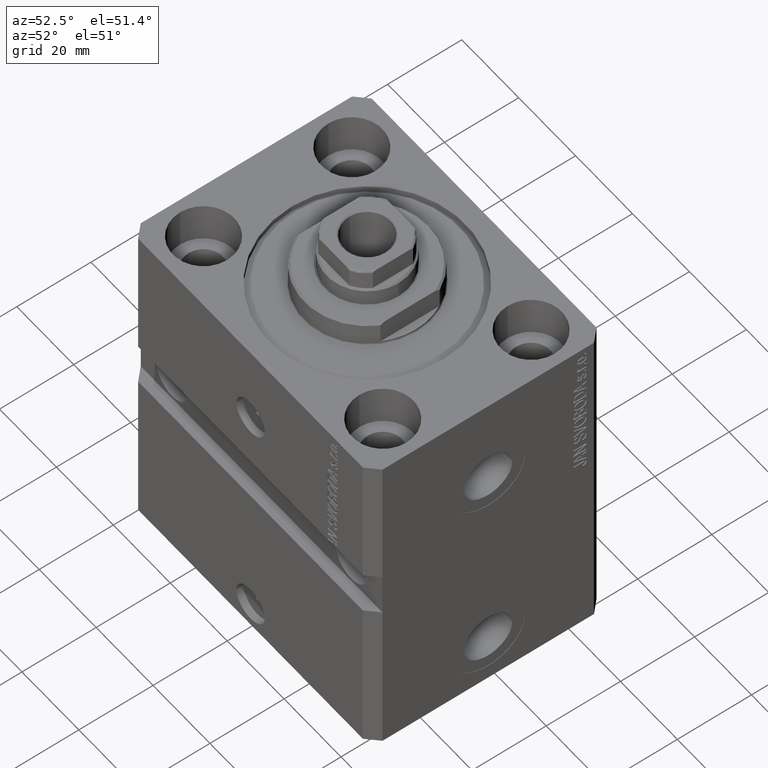
[diagram: clean part render]
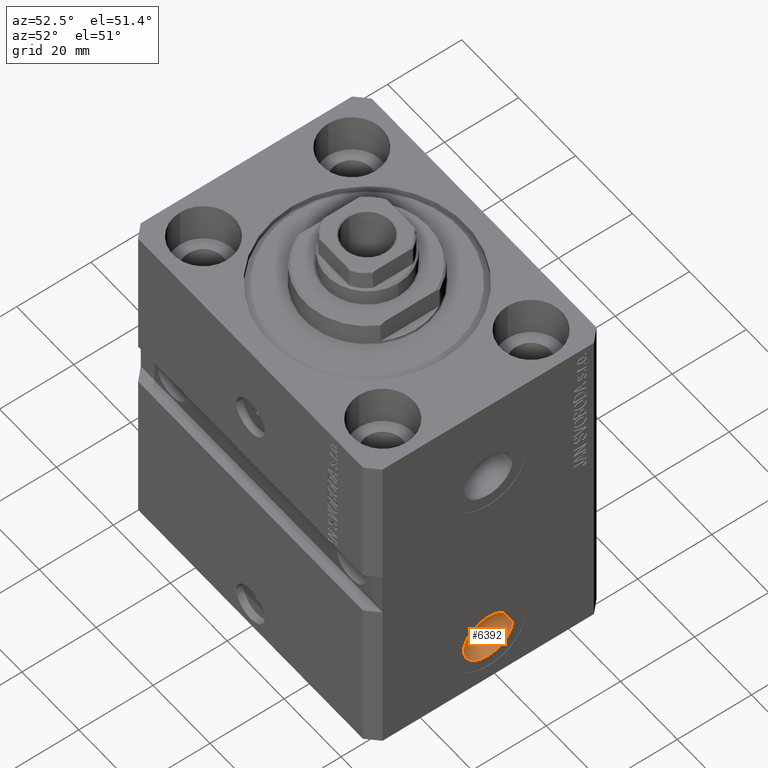
[diagram: same view with one face highlighted and labeled with its STEP entity id]
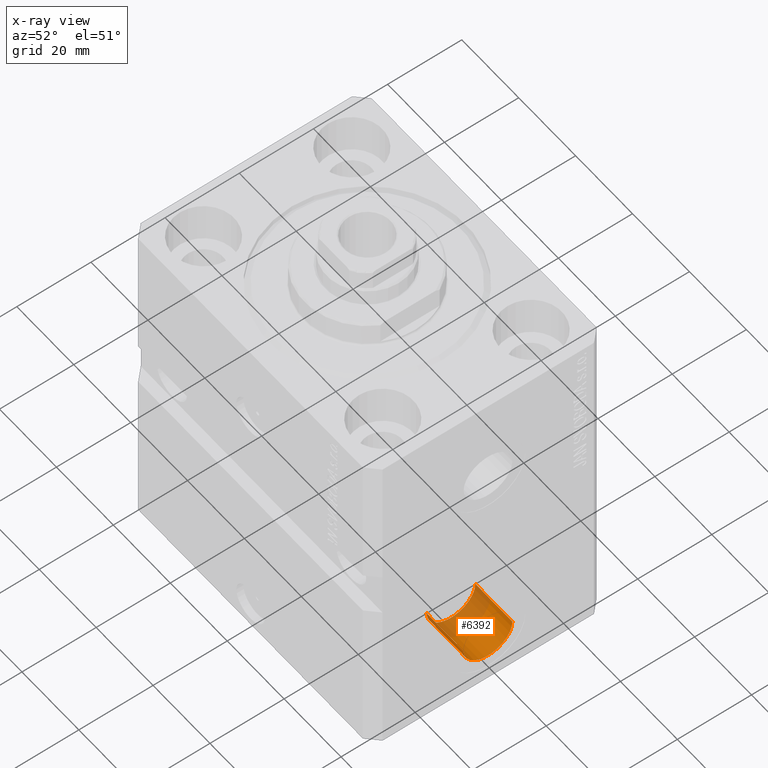
[diagram: x-ray of the same camera — body ghosted, the highlighted face saturated]
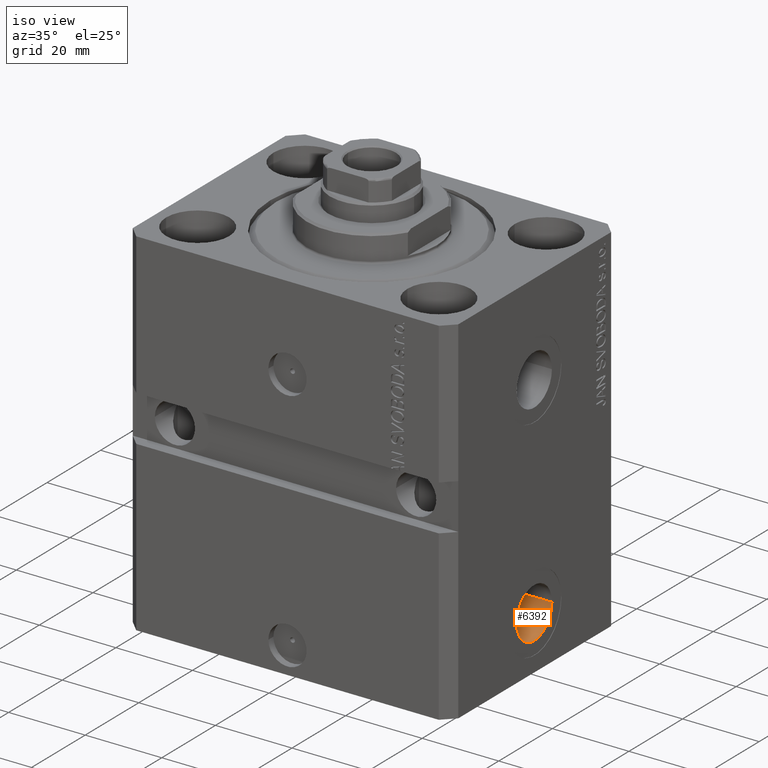
[diagram: same view with one face highlighted and labeled with its STEP entity id]
A machine part, auxiliary view. The second image highlights one B-rep face of the part: STEP entity #6392.
The next image is the same camera in x-ray: the body ghosted, the highlighted face saturated — about 39% of this face is hidden behind the body in this view.
A second angle (iso view) of the same face is appended — the face is thin or edge-on in the first view.
In plain terms, the highlighted cylindrical surface (edge-blend (fillet) strip) has radius 6.58 mm, axis along (1, -0, 0).
Its self-contained STEP definition (entity closure, byte-faithful):
#54 = LINE ( 'NONE', #14893, #9824 ) ;
#102 = EDGE_CURVE ( 'NONE', #21174, #42976, #19855, .T. ) ;
#2217 = AXIS2_PLACEMENT_3D ( 'NONE', #40500, #36154, #25902 ) ;
#3523 = FACE_OUTER_BOUND ( 'NONE', #4027, .T. ) ;
#3611 = CARTESIAN_POINT ( 'NONE',  ( 29.40000000000035385, 6.579999999999785132, -79.00000000000000000 ) ) ;
#3721 = ORIENTED_EDGE ( 'NONE', *, *, #25877, .F. ) ;
#3913 = DIRECTION ( 'NONE',  ( 1.370906090437600963E-14, 1.000000000000000000, 0.000000000000000000 ) ) ;
#4027 = EDGE_LOOP ( 'NONE', ( #3721, #26011, #20166, #5959 ) ) ;
#4643 = CARTESIAN_POINT ( 'NONE',  ( 42.40000000000026148, -3.763483751660370480E-13, -79.00000000000000000 ) ) ;
#5959 = ORIENTED_EDGE ( 'NONE', *, *, #26707, .F. ) ;
#6392 = ADVANCED_FACE ( 'NONE', ( #3523 ), #6709, .F. ) ;
#6709 = CYLINDRICAL_SURFACE ( 'NONE', #2217, 6.579999999999987637 ) ;
#6804 = CARTESIAN_POINT ( 'NONE',  ( 42.40000000000035385, 6.579999999999611049, -79.00000000000000000 ) ) ;
#9507 = VERTEX_POINT ( 'NONE', #38398 ) ;
#9824 = VECTOR ( 'NONE', #29743, 1000.000000000000000 ) ;
#9955 = VERTEX_POINT ( 'NONE', #39785 ) ;
#11716 = CARTESIAN_POINT ( 'NONE',  ( 42.40000000000017621, -6.580000000000363336, -79.00000000000000000 ) ) ;
#14893 = CARTESIAN_POINT ( 'NONE',  ( 29.40000000000017977, -6.580000000000191029, -79.00000000000000000 ) ) ;
#15339 = DIRECTION ( 'NONE',  ( 1.000000000000000000, -1.334402673828349134E-14, 0.000000000000000000 ) ) ;
#17517 = DIRECTION ( 'NONE',  ( 1.318178933113077855E-14, 1.000000000000000000, 0.000000000000000000 ) ) ;
#19427 = DIRECTION ( 'NONE',  ( 1.000000000000000000, -1.334402673828349292E-14, -0.000000000000000000 ) ) ;
#19855 = CIRCLE ( 'NONE', #26048, 6.579999999999987637 ) ;
#20166 = ORIENTED_EDGE ( 'NONE', *, *, #102, .T. ) ;
#20735 = VECTOR ( 'NONE', #19427, 1000.000000000000000 ) ;
#21174 = VERTEX_POINT ( 'NONE', #11716 ) ;
#22900 = EDGE_CURVE ( 'NONE', #9955, #21174, #54, .T. ) ;
#25877 = EDGE_CURVE ( 'NONE', #9955, #9507, #44785, .T. ) ;
#25902 = DIRECTION ( 'NONE',  ( 1.318178933113077855E-14, 1.000000000000000000, 0.000000000000000000 ) ) ;
#26011 = ORIENTED_EDGE ( 'NONE', *, *, #22900, .T. ) ;
#26048 = AXIS2_PLACEMENT_3D ( 'NONE', #4643, #15339, #3913 ) ;
#26707 = EDGE_CURVE ( 'NONE', #9507, #42976, #37670, .T. ) ;
#28498 = AXIS2_PLACEMENT_3D ( 'NONE', #40776, #37132, #17517 ) ;
#29743 = DIRECTION ( 'NONE',  ( 1.000000000000000000, -1.334402673828349292E-14, -0.000000000000000000 ) ) ;
#36154 = DIRECTION ( 'NONE',  ( 1.000000000000000000, -1.334402673828349292E-14, -0.000000000000000000 ) ) ;
#37132 = DIRECTION ( 'NONE',  ( 1.000000000000000000, -1.334402673828349134E-14, 0.000000000000000000 ) ) ;
#37670 = LINE ( 'NONE', #3611, #20735 ) ;
#38398 = CARTESIAN_POINT ( 'NONE',  ( 29.40000000000035385, 6.579999999999785132, -79.00000000000000000 ) ) ;
#39785 = CARTESIAN_POINT ( 'NONE',  ( 29.40000000000017977, -6.580000000000191029, -79.00000000000000000 ) ) ;
#40500 = CARTESIAN_POINT ( 'NONE',  ( 29.40000000000026503, -2.028760275683516938E-13, -79.00000000000000000 ) ) ;
#40776 = CARTESIAN_POINT ( 'NONE',  ( 29.40000000000026503, -2.028760275683516938E-13, -79.00000000000000000 ) ) ;
#42976 = VERTEX_POINT ( 'NONE', #6804 ) ;
#44785 = CIRCLE ( 'NONE', #28498, 6.579999999999987637 ) ;